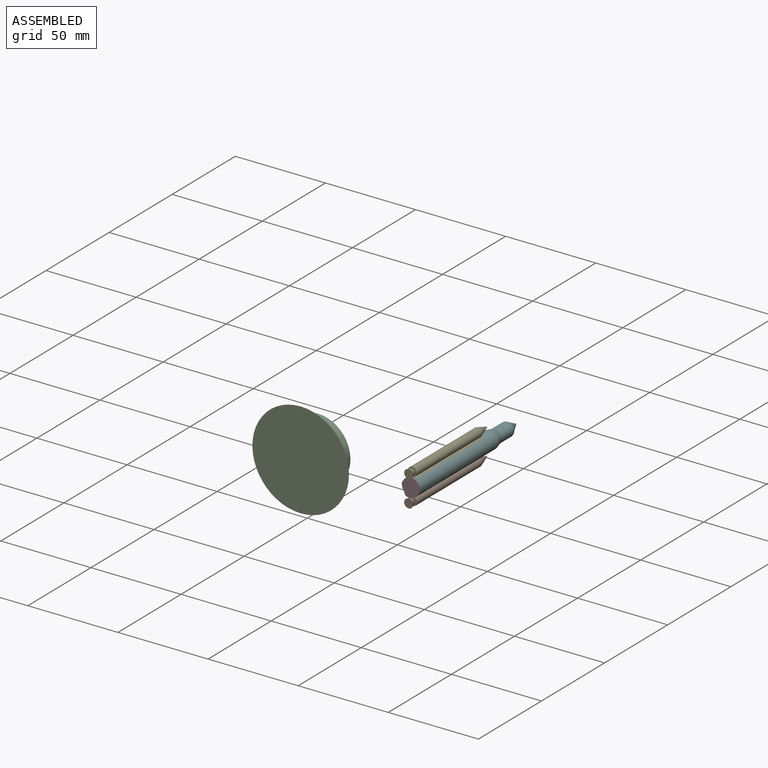
[diagram: assembled view]
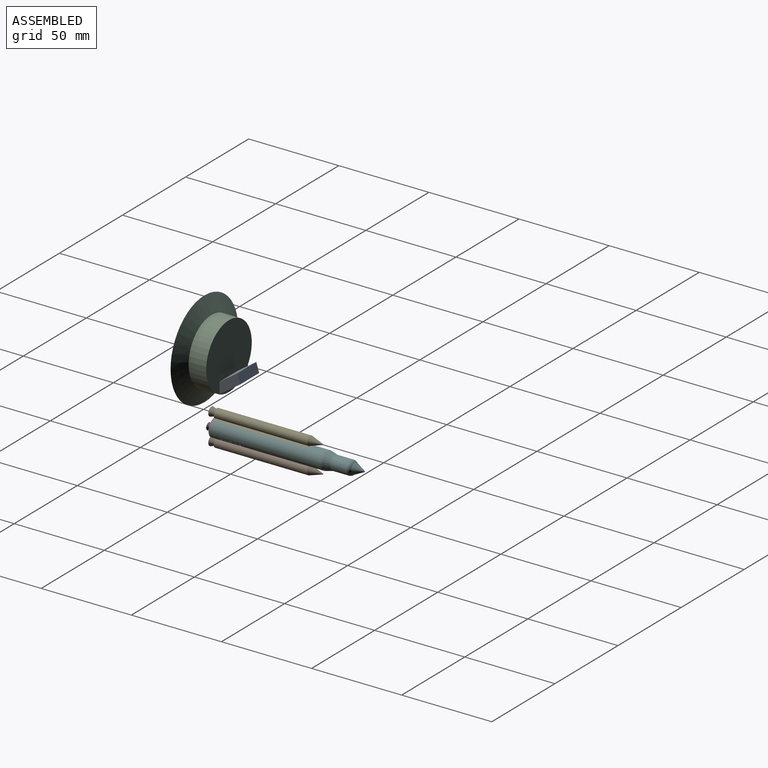
[diagram: assembled view, second angle]
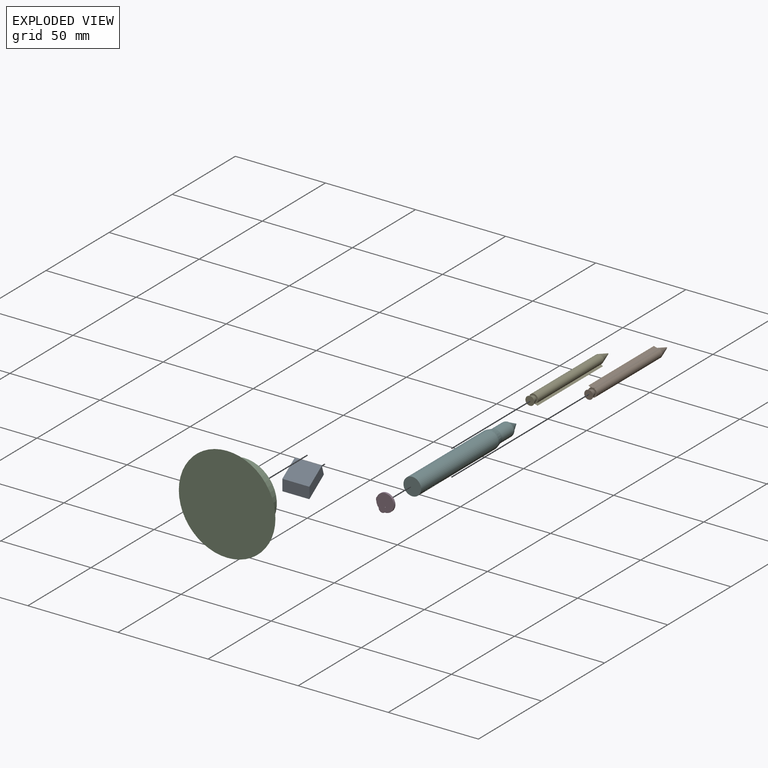
[diagram: exploded view]
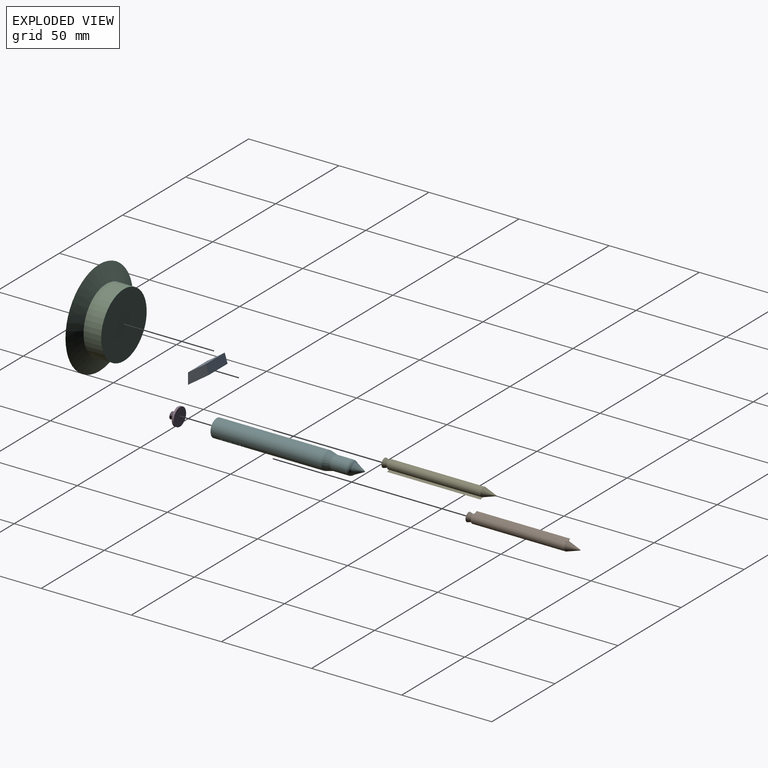
[diagram: exploded view, second angle]
ASSEMBLY  parts=6 mates=4
PART A: 6 faces, bbox 5.1x15x15.6 mm
  f0: plane 15x5.13mm, normal (0.3,0,0.95), area 80.7mm2, adj f1,f3,f4,f5
  f1: plane 15x12.03mm, normal (-1,0,0), area 180.5mm2, adj f0,f2,f4,f5
  f2: plane 15x5.13mm, normal (-0.57,0,-0.82), area 93.6mm2, adj f1,f3,f4,f5
  f3: plane 15x13.97mm, normal (1,0,0), area 209.5mm2, adj f0,f2,f4,f5
  f4: plane 15.58x5.13mm, normal (0,-1,0), area 66.7mm2, adj f0,f1,f2,f3
  f5: plane 15.58x5.13mm, normal (0,1,0), area 66.7mm2, adj f0,f1,f2,f3
PART B: 14 faces, bbox 62x4.9x5.5 mm
  f0: cylinder r=2.47mm len=51.9mm, axis (-1,0,0), area 710.6mm2, adj f3,f4,f7,f8,f11,f12
  f1: plane 4.95x4.95mm, normal (1,0,0), area 19.2mm2, adj f2
  f2: cone r=1.56mm half-angle=17.1deg, axis (1,0,0), area 39.2mm2, adj f1,f3
  f3: plane 4.95x4.95mm, normal (1,0,0), area 11.5mm2, adj f0,f2,f6
  f4: cone r=2.47mm half-angle=17.7deg, axis (1,0,0), area 62.7mm2, adj f0,f5,f10,f13
  f5: sphere r=0.27mm, area 0.2mm2, adj f4
  f6: cylinder r=2.47mm len=0.9mm, axis (-1,0,0), area 0mm2, adj f3,f7,f8,f9
  f7: plane 51.92x1.29mm, normal (0,-0.47,0.88), area 75.8mm2, adj f0,f6,f8,f9,f10
  f8: cylinder r=4.91mm len=51.92mm, axis (-1,0,0), area 235.8mm2, adj f0,f6,f7,f9,f10,f11,f12,f13
  f9: plane 2.19x0.69mm, normal (1,0,0), area 0.2mm2, adj f6,f7,f8
  f10: plane 2.19x0.69mm, normal (-1,0,0), area 0.2mm2, adj f4,f7,f8
  f11: plane 51.89x1.29mm, normal (0,0.47,0.88), area 75.8mm2, adj f0,f8,f12,f13
  f12: plane 2.19x0.69mm, normal (1,0,0), area 0.2mm2, adj f0,f8,f11
  f13: plane 2.19x0.69mm, normal (-1,0,0), area 0.2mm2, adj f4,f8,f11
PART C: 4 faces, bbox 53.6x53.6x13.7 mm
  f0: cylinder r=18.04mm len=36.07mm, axis (0,0,1), area 1107.9mm2, adj f1,f3
  f1: cone r=18.04mm half-angle=66.2deg, axis (0,0,-1), area 1350mm2, adj f0,f2
  f2: plane 53.6x53.6mm, normal (0,0,-1), area 2256.8mm2, adj f1
  f3: plane 36.07x36.07mm, normal (0,0,1), area 1022mm2, adj f0
PART D: 9 faces, bbox 9.8x2.9x9.8 mm
  f0: plane 9.82x9.82mm, normal (0,-1,0), area 73.4mm2, adj f1,f3,f5,f7
  f1: cylinder r=4.91mm len=9.82mm, axis (0,1,0), area 34.1mm2, adj f0,f2
  f2: plane 9.82x9.82mm, normal (0,1,0), area 75.7mm2, adj f1
  f3: cone r=0.4mm half-angle=40.4deg, axis (0,-1,0), area 17.7mm2, adj f0,f4
  f4: plane 3.95x3.95mm, normal (0,-1,0), area 12.2mm2, adj f3
  f5: cone r=0.4mm half-angle=40.4deg, axis (0,-1,0), area 17.7mm2, adj f0,f6
  f6: plane 3.95x3.95mm, normal (0,-1,0), area 12.2mm2, adj f5
  f7: cone r=0.4mm half-angle=40.4deg, axis (0,-1,0), area 17.7mm2, adj f0,f8
  f8: plane 3.95x3.95mm, normal (0,-1,0), area 12.2mm2, adj f7
PART E: same geometry as B
PART F: 202 faces, bbox 9.8x82.2x9.8 mm
  f0: cylinder r=4.91mm len=61.06mm, axis (0,-1,0), area 1875.3mm2, adj f6,f7,f10,f11,f12,f13,f14,f15
  f1: cone r=4.91mm half-angle=14.2deg, axis (0,1,0), area 104.1mm2, adj f7,f8
  f2: cylinder r=3.82mm len=8.69mm, axis (0,-1,0), area 208.7mm2, adj f8,f9
  f3: cone r=2.94mm half-angle=37.5deg, axis (0,1,0), area 11.7mm2, adj f4,f9
  f4: cone r=2.94mm half-angle=26.4deg, axis (0,1,0), area 61mm2, adj f3,f5
  f5: sphere r=0.28mm, area 0.2mm2, adj f4
  f6: plane 9.82x9.82mm, normal (0,1,0), area 75.7mm2, adj f0
  f7: torus R=2.41mm, axis (0,1,0), area 19mm2, adj f0,f1
  f8: torus R=6.32mm, axis (0,-1,0), area 15mm2, adj f1,f2
  f9: torus R=1.32mm, axis (0,1,0), area 37.5mm2, adj f2,f3
  f10: extruded ~0.64x0.14mm, area 0.1mm2, adj f0,f11,f22,f23
  f11: extruded ~0.69x0.21mm, area 0.1mm2, adj f0,f10,f12,f23
  f12: extruded ~0.88x0.18mm, area 0.2mm2, adj f0,f11,f13,f23
  f13: plane 0.88x0.01mm, normal (0,0,-1), area 0mm2, adj f0,f12,f14,f23
  f14: plane 0.88x0.22mm, normal (0,-1,-0.09), area 0.2mm2, adj f0,f13,f15,f23
  f15: plane 0.65x0.15mm, normal (0,0,-1), area 0.1mm2, adj f0,f14,f16,f23
  f16: plane 1.63x1.2mm, normal (0,1,0), area 1.4mm2, adj f0,f15,f17,f23
  f17: plane 1.63x0.18mm, normal (0,0,1), area 0.3mm2, adj f0,f16,f18,f23
  f18: plane 1.63x0.64mm, normal (0,-1,0), area 0.9mm2, adj f0,f17,f19,f23
  f19: extruded ~1.18x0.29mm, area 0.3mm2, adj f0,f18,f20,f23
  f20: extruded ~0.92x0.25mm, area 0.2mm2, adj f0,f19,f21,f23
  f21: extruded ~0.82x0.13mm, area 0.1mm2, adj f0,f20,f22,f23
  f22: plane 0.82x0.17mm, normal (0,-0.99,0.15), area 0.1mm2, adj f0,f10,f21,f23
  f23: plane 1.22x0.69mm, normal (1,0,0), area 0.3mm2, adj f10,f11,f12,f13,f14,f15,f16,f17
  f24: extruded ~1.64x0.4mm, area 0.7mm2, adj f0,f25,f38,f39
  f25: extruded ~1.64x0.3mm, area 0.5mm2, adj f0,f24,f26,f39
  f26: plane 1.6x0.16mm, normal (0,-1,0), area 0.2mm2, adj f0,f25,f27,f39
  f27: extruded ~1.55x0.31mm, area 0.5mm2, adj f0,f26,f28,f39
  f28: extruded ~1.55x0.26mm, area 0.5mm2, adj f0,f27,f29,f39
  f29: extruded ~1.47x0.34mm, area 0.5mm2, adj f0,f28,f30,f39
  f30: extruded ~1.22x0.47mm, area 0.6mm2, adj f0,f29,f31,f39
  f31: extruded ~0.81x0.13mm, area 0.1mm2, adj f0,f30,f32,f39
  f32: extruded ~0.85x0.13mm, area 0.1mm2, adj f0,f31,f33,f39
  f33: plane 0.85x0.15mm, normal (0,-0.94,0.34), area 0.1mm2, adj f0,f32,f34,f39
  f34: extruded ~0.69x0.14mm, area 0.1mm2, adj f0,f33,f35,f39
  f35: extruded ~0.64x0.17mm, area 0.1mm2, adj f0,f34,f36,f39
  f36: extruded ~0.8x0.41mm, area 0.3mm2, adj f0,f35,f37,f39
  f37: extruded ~1.22x0.46mm, area 0.5mm2, adj f0,f36,f38,f39
  f38: extruded ~1.54x0.45mm, area 0.7mm2, adj f0,f24,f37,f39
  f39: plane 1.24x0.86mm, normal (1,0,0), area 0.4mm2, adj f24,f25,f26,f27,f28,f29,f30,f31
  f40: plane 1.35x0.78mm, normal (0,-1,0), area 0.8mm2, adj f0,f41,f56,f57
  f41: plane 0.65x0.18mm, normal (0,0,-1), area 0.1mm2, adj f0,f40,f42,f57
  f42: plane 1.36x0.78mm, normal (0,1,0), area 0.8mm2, adj f0,f41,f43,f57
  f43: extruded ~1.58x0.33mm, area 0.5mm2, adj f0,f42,f44,f57
  f44: extruded ~1.64x0.33mm, area 0.6mm2, adj f0,f43,f45,f57
  f45: extruded ~1.64x0.23mm, area 0.4mm2, adj f0,f44,f46,f57
  f46: extruded ~1.61x0.15mm, area 0.3mm2, adj f0,f45,f47,f57
  f47: plane 1.53x0.01mm, normal (0,0,1), area 0mm2, adj f0,f46,f48,f57
  f48: plane 1.63x0.16mm, normal (0,0.99,0.16), area 0.3mm2, adj f0,f47,f49,f57
  f49: plane 1.63x0.15mm, normal (0,0,1), area 0.2mm2, adj f0,f48,f50,f57
  f50: plane 1.63x1.2mm, normal (0,-1,0), area 1.4mm2, adj f0,f49,f51,f57
  f51: plane 0.65x0.18mm, normal (0,0,-1), area 0.1mm2, adj f0,f50,f52,f57
  f52: plane 1.24x0.63mm, normal (0,1,0), area 0.6mm2, adj f0,f51,f53,f57
  f53: extruded ~1.48x0.34mm, area 0.5mm2, adj f0,f52,f54,f57
  f54: extruded ~1.55x0.27mm, area 0.5mm2, adj f0,f53,f55,f57
  f55: extruded ~1.55x0.21mm, area 0.3mm2, adj f0,f54,f56,f57
  f56: extruded ~1.5x0.22mm, area 0.3mm2, adj f0,f40,f55,f57
  f57: plane 1.22x1mm, normal (1,0,0), area 0.5mm2, adj f40,f41,f42,f43,f44,f45,f46,f47
  f58: plane 1.63x0.18mm, normal (0,0,1), area 0.3mm2, adj f0,f59,f60,f61
  f59: plane 1.68x1.63mm, normal (0,-1,0), area 1.6mm2, adj f0,f58,f61
  f60: plane 1.68x1.63mm, normal (0,1,0), area 1.6mm2, adj f0,f58,f61
  f61: plane 1.68x0.18mm, normal (1,0,0), area 0.3mm2, adj f0,f58,f59,f60
  f62: extruded ~1.59x0.26mm, area 0.4mm2, adj f0,f63,f86,f87
  f63: extruded ~1.42x0.2mm, area 0.3mm2, adj f0,f62,f64,f87
  f64: extruded ~1.27x0.29mm, area 0.4mm2, adj f0,f63,f65,f87
  f65: extruded ~1.15x0.21mm, area 0.3mm2, adj f0,f64,f66,f87
  f66: extruded ~1.07x0.08mm, area 0.1mm2, adj f0,f65,f67,f87
  f67: extruded ~1.01x0.08mm, area 0.1mm2, adj f0,f66,f68,f87
  f68: extruded ~0.94x0.11mm, area 0.1mm2, adj f0,f67,f69,f87
  f69: extruded ~0.83x0.19mm, area 0.2mm2, adj f0,f68,f70,f87
  f70: extruded ~0.86x0.33mm, area 0.3mm2, adj f0,f69,f71,f87
  f71: plane 0.86x0.15mm, normal (0,-0.92,0.4), area 0.1mm2, adj f0,f70,f72,f87
  f72: extruded ~0.71x0.38mm, area 0.3mm2, adj f0,f71,f73,f87
  f73: extruded ~0.71x0.33mm, area 0.2mm2, adj f0,f72,f74,f87
  f74: extruded ~0.95x0.23mm, area 0.2mm2, adj f0,f73,f75,f87
  f75: extruded ~1.08x0.14mm, area 0.1mm2, adj f0,f74,f76,f87
  f76: extruded ~1.17x0.11mm, area 0.2mm2, adj f0,f75,f77,f87
  f77: extruded ~1.26x0.24mm, area 0.3mm2, adj f0,f76,f78,f87
  f78: extruded ~1.34x0.24mm, area 0.3mm2, adj f0,f77,f79,f87
  f79: extruded ~1.43x0.12mm, area 0.2mm2, adj f0,f78,f80,f87
  f80: extruded ~1.52x0.14mm, area 0.2mm2, adj f0,f79,f81,f87
  f81: extruded ~1.55x0.22mm, area 0.3mm2, adj f0,f80,f82,f87
  f82: extruded ~1.55x0.19mm, area 0.3mm2, adj f0,f81,f83,f87
  f83: extruded ~1.54x0.19mm, area 0.3mm2, adj f0,f82,f84,f87
  f84: plane 1.6x0.17mm, normal (0,1,0), area 0.3mm2, adj f0,f83,f85,f87
  f85: extruded ~1.64x0.37mm, area 0.6mm2, adj f0,f84,f86,f87
  f86: extruded ~1.64x0.35mm, area 0.6mm2, adj f0,f62,f85,f87
  f87: plane 1.24x0.85mm, normal (1,0,0), area 0.4mm2, adj f62,f63,f64,f65,f66,f67,f68,f69
  f88: extruded ~1.57x0.33mm, area 0.5mm2, adj f0,f89,f112,f113
  f89: extruded ~1.35x0.27mm, area 0.4mm2, adj f0,f88,f90,f113
  f90: extruded ~1.14x0.35mm, area 0.4mm2, adj f0,f89,f91,f113
  f91: extruded ~0.97x0.22mm, area 0.2mm2, adj f0,f90,f92,f113
  f92: extruded ~0.87x0.1mm, area 0.1mm2, adj f0,f91,f93,f113
  f93: extruded ~0.77x0.14mm, area 0.1mm2, adj f0,f92,f94,f113
  f94: extruded ~0.63x0.18mm, area 0.1mm2, adj f0,f93,f95,f113
  f95: extruded ~0.41x0.23mm, area 0.1mm2, adj f0,f94,f96,f113
  f96: extruded ~0.44x0.38mm, area 0.2mm2, adj f0,f95,f97,f113
  f97: plane 0.44x0.16mm, normal (0,-0.94,0.34), area 0.1mm2, adj f0,f96,f98,f113
  f98: extruded ~0.44x0.22mm, area 0.1mm2, adj f0,f97,f99,f113
  f99: extruded ~0.37x0.25mm, area 0.1mm2, adj f0,f98,f100,f113
  f100: extruded ~0.62x0.29mm, area 0.1mm2, adj f0,f99,f101,f113
  f101: extruded ~0.92x0.29mm, area 0.2mm2, adj f0,f100,f102,f113
  f102: extruded ~1.1x0.32mm, area 0.4mm2, adj f0,f101,f103,f113
  f103: extruded ~1.18x0.24mm, area 0.3mm2, adj f0,f102,f104,f113
  f104: extruded ~1.26x0.11mm, area 0.2mm2, adj f0,f103,f105,f113
  f105: extruded ~1.36x0.14mm, area 0.2mm2, adj f0,f104,f106,f113
  f106: extruded ~1.5x0.2mm, area 0.3mm2, adj f0,f105,f107,f113
  f107: extruded ~1.54x0.28mm, area 0.4mm2, adj f0,f106,f108,f113
  f108: extruded ~1.54x0.23mm, area 0.4mm2, adj f0,f107,f109,f113
  f109: extruded ~1.53x0.21mm, area 0.3mm2, adj f0,f108,f110,f113
  f110: plane 1.6x0.18mm, normal (0,1,0), area 0.3mm2, adj f0,f109,f111,f113
  f111: extruded ~1.64x0.44mm, area 0.7mm2, adj f0,f110,f112,f113
  f112: extruded ~1.64x0.41mm, area 0.7mm2, adj f0,f88,f111,f113
  f113: plane 1.64x1mm, normal (1,0,0), area 0.6mm2, adj f88,f89,f90,f91,f92,f93,f94,f95
  f114: plane 1.63x1.6mm, normal (0,1,0), area 1.6mm2, adj f0,f115,f119,f120
  f115: plane 1.63x0.89mm, normal (0,0,1), area 1.4mm2, adj f0,f114,f116,f120
  f116: plane 1.63x0.17mm, normal (0,-1,0), area 0.3mm2, adj f0,f115,f117,f120
  f117: plane 1.53x0.7mm, normal (0,0,-1), area 1.1mm2, adj f0,f116,f118,f120
  f118: plane 1.53x1.43mm, normal (0,-1,0), area 1.3mm2, adj f0,f117,f119,f120
  f119: plane 0.19x0.13mm, normal (0,0,-1), area 0mm2, adj f0,f114,f118,f120
  f120: plane 1.6x0.89mm, normal (1,0,0), area 0.4mm2, adj f114,f115,f116,f117,f118,f119
  f121: extruded ~1.57x0.33mm, area 0.5mm2, adj f0,f122,f145,f146
  f122: extruded ~1.35x0.27mm, area 0.4mm2, adj f0,f121,f123,f146
  f123: extruded ~1.14x0.35mm, area 0.4mm2, adj f0,f122,f124,f146
  f124: extruded ~0.97x0.22mm, area 0.2mm2, adj f0,f123,f125,f146
  f125: extruded ~0.87x0.1mm, area 0.1mm2, adj f0,f124,f126,f146
  f126: extruded ~0.77x0.14mm, area 0.1mm2, adj f0,f125,f127,f146
  f127: extruded ~0.63x0.18mm, area 0.1mm2, adj f0,f126,f128,f146
  f128: extruded ~0.41x0.23mm, area 0.1mm2, adj f0,f127,f129,f146
  f129: extruded ~0.44x0.38mm, area 0.2mm2, adj f0,f128,f130,f146
  f130: plane 0.44x0.16mm, normal (0,-0.94,0.34), area 0.1mm2, adj f0,f129,f131,f146
  f131: extruded ~0.44x0.22mm, area 0.1mm2, adj f0,f130,f132,f146
  f132: extruded ~0.37x0.25mm, area 0.1mm2, adj f0,f131,f133,f146
  f133: extruded ~0.62x0.29mm, area 0.1mm2, adj f0,f132,f134,f146
  f134: extruded ~0.92x0.29mm, area 0.2mm2, adj f0,f133,f135,f146
  f135: extruded ~1.1x0.32mm, area 0.4mm2, adj f0,f134,f136,f146
  f136: extruded ~1.18x0.24mm, area 0.3mm2, adj f0,f135,f137,f146
  f137: extruded ~1.26x0.11mm, area 0.2mm2, adj f0,f136,f138,f146
  f138: extruded ~1.36x0.14mm, area 0.2mm2, adj f0,f137,f139,f146
  f139: extruded ~1.5x0.2mm, area 0.3mm2, adj f0,f138,f140,f146
  f140: extruded ~1.54x0.28mm, area 0.4mm2, adj f0,f139,f141,f146
  f141: extruded ~1.54x0.23mm, area 0.4mm2, adj f0,f140,f142,f146
  f142: extruded ~1.53x0.21mm, area 0.3mm2, adj f0,f141,f143,f146
  f143: plane 1.6x0.18mm, normal (0,1,0), area 0.3mm2, adj f0,f142,f144,f146
  f144: extruded ~1.64x0.44mm, area 0.7mm2, adj f0,f143,f145,f146
  f145: extruded ~1.64x0.41mm, area 0.7mm2, adj f0,f121,f144,f146
  f146: plane 1.64x1mm, normal (1,0,0), area 0.6mm2, adj f121,f122,f123,f124,f125,f126,f127,f128
  f147: extruded ~0.88x0.23mm, area 0.2mm2, adj f148,f165,f166,f200
  f148: extruded ~0.88x0.22mm, area 0.2mm2, adj f147,f149,f166,f200
  f149: extruded ~1.12x0.26mm, area 0.3mm2, adj f148,f150,f166,f200
  f150: plane 1.12x0.63mm, normal (0,0,-1), area 0.7mm2, adj f149,f165,f166,f200
  f151: extruded ~1.64x0.42mm, area 0.7mm2, adj f0,f152,f164,f166
  f152: extruded ~1.64x0.21mm, area 0.3mm2, adj f0,f151,f153,f166
  f153: extruded ~1.63x0.18mm, area 0.3mm2, adj f0,f152,f154,f166
  f154: plane 1.6x0.16mm, normal (0,-1,0), area 0.2mm2, adj f0,f153,f155,f166
  f155: extruded ~1.55x0.38mm, area 0.6mm2, adj f0,f154,f156,f166
  f156: extruded ~1.55x0.28mm, area 0.5mm2, adj f0,f155,f157,f166
  f157: extruded ~1.47x0.32mm, area 0.5mm2, adj f0,f156,f158,f166
  f158: plane 1.24x0.82mm, normal (0,0,1), area 1mm2, adj f0,f157,f159,f166
  f159: plane 1.24x0.11mm, normal (0,-1,0), area 0.1mm2, adj f0,f158,f160,f166
  f160: extruded ~1.15x0.39mm, area 0.4mm2, adj f0,f159,f161,f166
  f161: extruded ~0.78x0.36mm, area 0.3mm2, adj f0,f160,f162,f166
  f162: extruded ~0.81x0.38mm, area 0.3mm2, adj f0,f161,f163,f166
  f163: extruded ~1.22x0.46mm, area 0.5mm2, adj f0,f162,f164,f166
  f164: extruded ~1.54x0.45mm, area 0.7mm2, adj f0,f151,f163,f166
  f165: extruded ~1.12x0.26mm, area 0.3mm2, adj f147,f150,f166,f200
  f166: plane 1.24x1.01mm, normal (1,0,0), area 0.6mm2, adj f147,f148,f149,f150,f151,f152,f153,f154
  f167: extruded ~0.88x0.23mm, area 0.2mm2, adj f168,f185,f186,f201
  f168: extruded ~0.88x0.22mm, area 0.2mm2, adj f167,f169,f186,f201
  f169: extruded ~1.12x0.26mm, area 0.3mm2, adj f168,f170,f186,f201
  f170: plane 1.12x0.63mm, normal (0,0,-1), area 0.7mm2, adj f169,f185,f186,f201
  f171: extruded ~1.64x0.42mm, area 0.7mm2, adj f0,f172,f184,f186
  f172: extruded ~1.64x0.21mm, area 0.3mm2, adj f0,f171,f173,f186
  f173: extruded ~1.63x0.18mm, area 0.3mm2, adj f0,f172,f174,f186
  f174: plane 1.6x0.16mm, normal (0,-1,0), area 0.2mm2, adj f0,f173,f175,f186
  f175: extruded ~1.55x0.38mm, area 0.6mm2, adj f0,f174,f176,f186
  f176: extruded ~1.55x0.28mm, area 0.5mm2, adj f0,f175,f177,f186
  f177: extruded ~1.47x0.32mm, area 0.5mm2, adj f0,f176,f178,f186
  f178: plane 1.24x0.82mm, normal (0,0,1), area 1mm2, adj f0,f177,f179,f186
  f179: plane 1.24x0.11mm, normal (0,-1,0), area 0.1mm2, adj f0,f178,f180,f186
  f180: extruded ~1.15x0.39mm, area 0.4mm2, adj f0,f179,f181,f186
  f181: extruded ~0.78x0.36mm, area 0.3mm2, adj f0,f180,f182,f186
  f182: extruded ~0.81x0.38mm, area 0.3mm2, adj f0,f181,f183,f186
  f183: extruded ~1.22x0.46mm, area 0.5mm2, adj f0,f182,f184,f186
  f184: extruded ~1.54x0.45mm, area 0.7mm2, adj f0,f171,f183,f186
  f185: extruded ~1.12x0.26mm, area 0.3mm2, adj f167,f170,f186,f201
  f186: plane 1.24x1.01mm, normal (1,0,0), area 0.6mm2, adj f167,f168,f169,f170,f171,f172,f173,f174
  f187: plane 1.63x0.19mm, normal (0,0,1), area 0.3mm2, adj f0,f188,f198,f199
  f188: plane 1.63x1.6mm, normal (0,-1,0), area 1.6mm2, adj f0,f187,f189,f199
  f189: plane 0.19x0.13mm, normal (0,0,-1), area 0mm2, adj f0,f188,f190,f199
  f190: plane 0.94x0.68mm, normal (0,1,0), area 0.4mm2, adj f0,f189,f191,f199
  f191: plane 0.94x0.84mm, normal (0,0,-1), area 0.8mm2, adj f0,f190,f192,f199
  f192: plane 0.94x0.68mm, normal (0,-1,0), area 0.4mm2, adj f0,f191,f193,f199
  f193: plane 0.19x0.13mm, normal (0,0,-1), area 0mm2, adj f0,f192,f194,f199
  f194: plane 1.63x1.6mm, normal (0,1,0), area 1.6mm2, adj f0,f193,f195,f199
  f195: plane 1.63x0.19mm, normal (0,0,1), area 0.3mm2, adj f0,f194,f196,f199
  f196: plane 1.63x0.75mm, normal (0,-1,0), area 1mm2, adj f0,f195,f197,f199
  f197: plane 1.09x0.84mm, normal (0,0,1), area 0.9mm2, adj f0,f196,f198,f199
  f198: plane 1.63x0.75mm, normal (0,1,0), area 1mm2, adj f0,f187,f197,f199
  f199: plane 1.6x1.21mm, normal (1,0,0), area 0.7mm2, adj f187,f188,f189,f190,f191,f192,f193,f194
  f200: cylinder r=4.91mm len=0.63mm, axis (0,-1,0), area 0.2mm2, adj f147,f148,f149,f150,f165
  f201: cylinder r=4.91mm len=0.63mm, axis (0,-1,0), area 0.2mm2, adj f167,f168,f169,f170,f185
PLACE A rot(axis=(-0.42,0.42,0.8),102.4deg) t=(-60.18,12.29,7.93)mm
PLACE B rot(axis=(0.71,-0.71,0),180deg) t=(-9.27,89.4,-5.42)mm
PLACE C rot(axis=(-0.58,-0.58,-0.58),120deg) t=(-52.68,12.29,17.93)mm
PLACE D t=(-14.33,32.31,1.97)mm
PLACE E rot(axis=(0,0,-1),90deg) t=(-19.39,89.4,9.35)mm
PLACE F rot(axis=(1,0,0),180deg) t=(-14.33,43.2,1.97)mm
MATE fastened E.f8 <-> F.f0  axis (0,1,0) through (-14.33,32.31,1.97)mm
MATE fastened F.f0 <-> B.f8  axis (0,1,0) through (-14.33,32.31,1.97)mm
MATE fastened A.f2 <-> C.f3  axis (0,-1,0) through (-52.68,12.29,7.93)mm
MATE fastened F.f0 <-> D.f1  axis (0,-1,0) through (-14.33,32.31,1.97)mm
